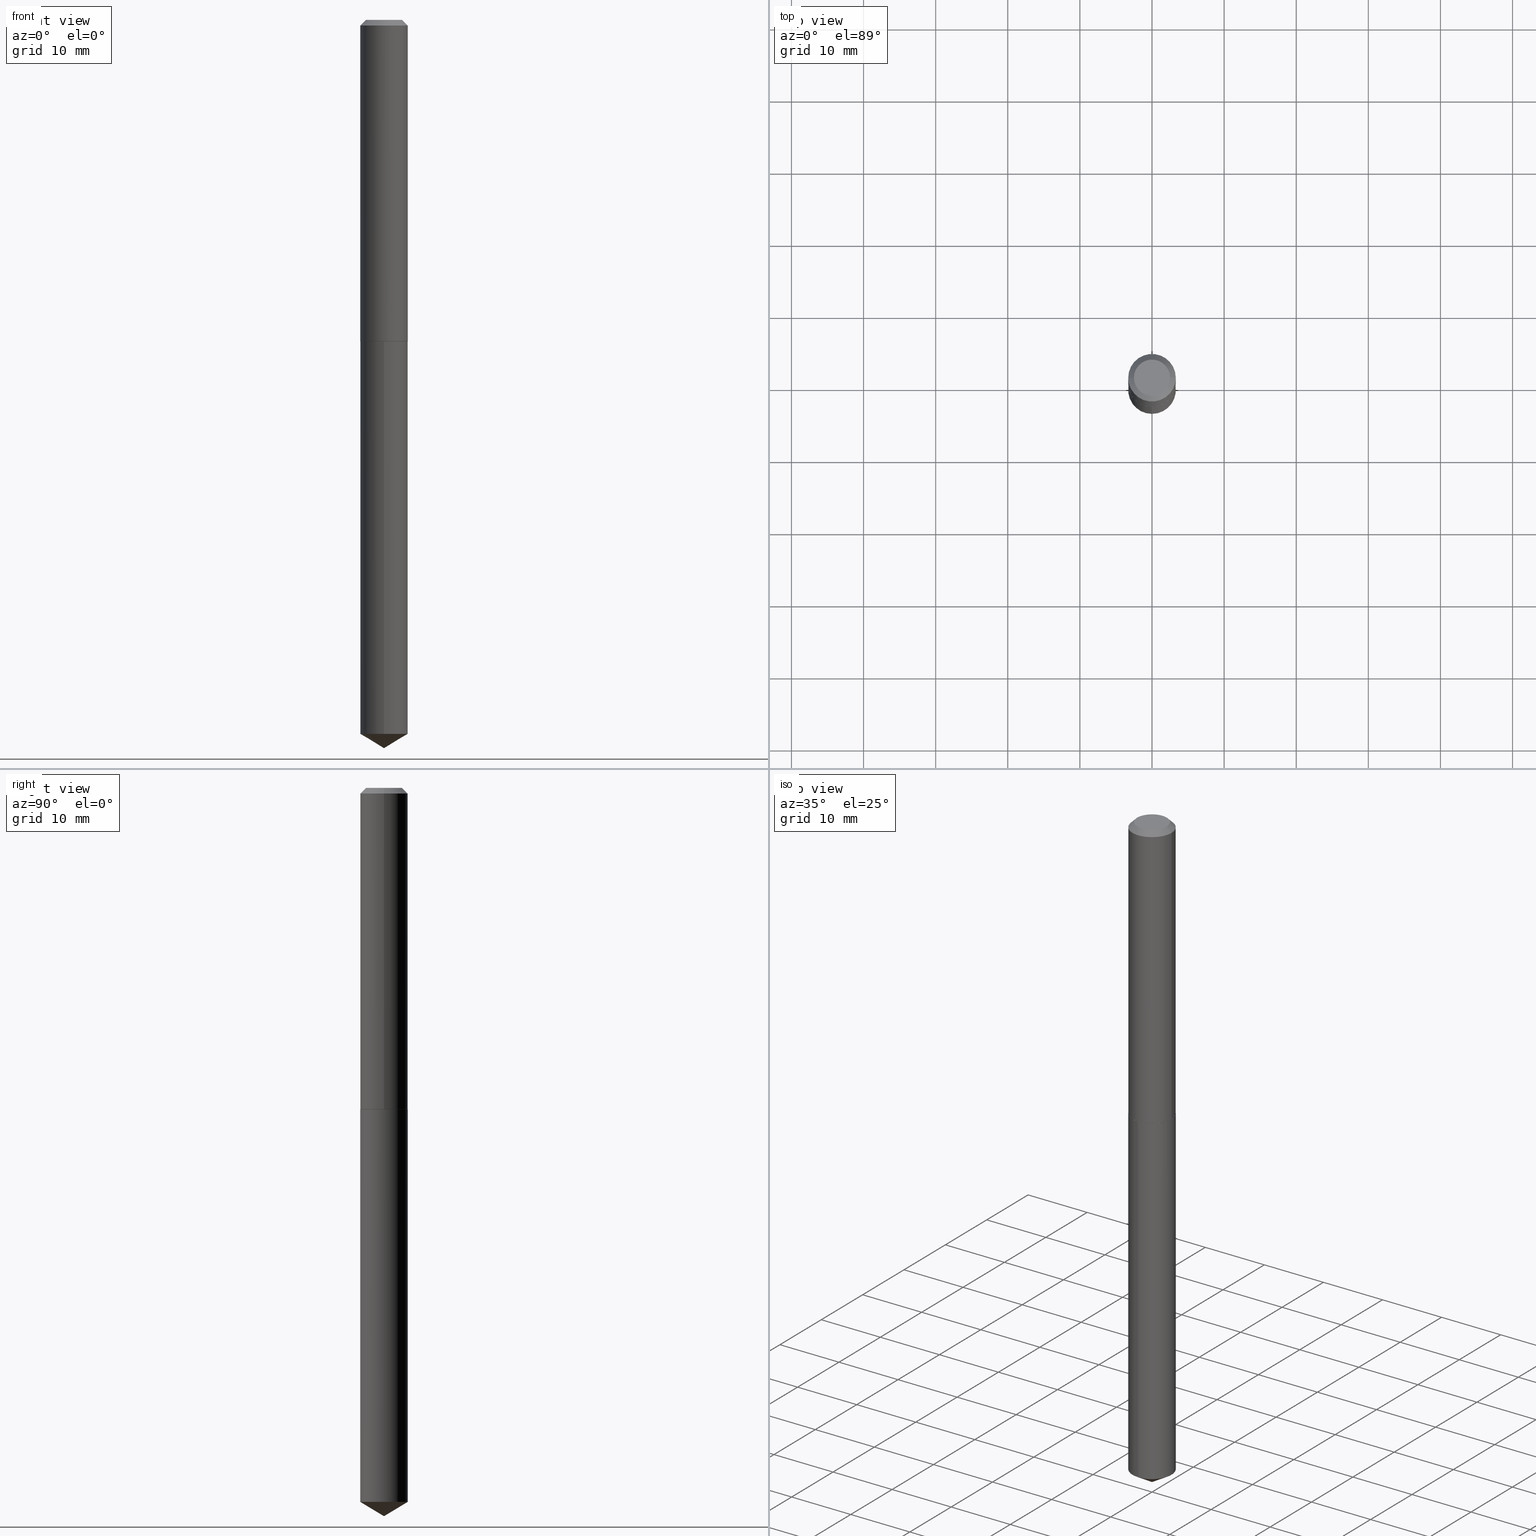
[diagram: canonical four-view strip — front | top / right | iso, engineering-drawing reading convention]
A machine part, canonical four-view strip (front | top / right | iso — engineering-drawing reading convention). The complete STEP part file that produces these views, byte-faithful:
ISO-10303-21;
HEADER;
FILE_DESCRIPTION (( 'STEP AP203' ),
    '1' );
FILE_NAME ('68338.STEP',
    '2024-04-23T13:09:23',
    ( '' ),
    ( '' ),
    'SwSTEP 2.0',
    'SolidWorks 2023',
    '' );
FILE_SCHEMA (( 'CONFIG_CONTROL_DESIGN' ));
ENDSEC;

DATA;
#1 = PERSON_AND_ORGANIZATION ( #253, #172 ) ;
#2 = CARTESIAN_POINT ( 'NONE',  ( 9.724418431170439560E-29, -1.388315940218349034E-14, -3.976399999999999491 ) ) ;
#3 = ORIENTED_EDGE ( 'NONE', *, *, #373, .F. ) ;
#4 = VECTOR ( 'NONE', #153, 39.37007874015748143 ) ;
#5 = CIRCLE ( 'NONE', #250, 0.1294000000000004036 ) ;
#6 = LINE ( 'NONE', #366, #231 ) ;
#7 = DIRECTION ( 'NONE',  ( 2.438088387897960049E-29, -3.491481338843145188E-15, -1.000000000000000000 ) ) ;
#8 = DIRECTION ( 'NONE',  ( -2.445533253991157994E-29, 3.491389045916781697E-15, 1.000000000000000000 ) ) ;
#9 = DIRECTION ( 'NONE',  ( -2.445468806185136877E-29, 3.491481338843145188E-15, 1.000000000000000000 ) ) ;
#10 = CC_DESIGN_APPROVAL ( #21, ( #89 ) ) ;
#11 = CARTESIAN_POINT ( 'NONE',  ( 4.292775942377387152E-29, -6.128946342205256121E-15, -1.755399999999999627 ) ) ;
#12 = EDGE_CURVE ( 'NONE', #314, #322, #316, .T. ) ;
#13 = DIRECTION ( 'NONE',  ( -6.982962677686266711E-15, -1.000000000000000000, 4.206078512185163024E-15 ) ) ;
#14 = DIRECTION ( 'NONE',  ( -0.7071067811865453523, 2.468850131082234184E-15, -0.7071067811865496822 ) ) ;
#15 = ORIENTED_EDGE ( 'NONE', *, *, #123, .T. ) ;
#16 = EDGE_CURVE ( 'NONE', #83, #136, #263, .T. ) ;
#17 = ORIENTED_EDGE ( 'NONE', *, *, #116, .F. ) ;
#18 = CARTESIAN_POINT ( 'NONE',  ( -0.1299000000000000155, 7.979780599925969900E-16, -0.03125000000000022204 ) ) ;
#19 = DATE_AND_TIME ( #204, #165 ) ;
#20 = ORIENTED_EDGE ( 'NONE', *, *, #284, .F. ) ;
#21 = APPROVAL ( #389, 'UNSPECIFIED' ) ;
#22 = DATE_TIME_ROLE ( 'creation_date' ) ;
#23 = DIRECTION ( 'NONE',  ( -6.982962677686266711E-15, -1.000000000000000000, 4.206078512185163024E-15 ) ) ;
#24 = CYLINDRICAL_SURFACE ( 'NONE', #267, 0.1299000000000000987 ) ;
#25 = VECTOR ( 'NONE', #14, 39.37007874015748143 ) ;
#26 = PERSON_AND_ORGANIZATION_ROLE ( 'classification_officer' ) ;
#27 = CARTESIAN_POINT ( 'NONE',  ( -0.09864999999999998770, 7.434236640731735244E-16, 4.776122516624595065E-19 ) ) ;
#28 = APPROVAL_ROLE ( '' ) ;
#29 = PRODUCT_RELATED_PRODUCT_CATEGORY ( 'detail', '', ( #282 ) ) ;
#30 = EDGE_LOOP ( 'NONE', ( #327, #299 ) ) ;
#31 = PLANE ( 'NONE',  #46 ) ;
#32 = CARTESIAN_POINT ( 'NONE',  ( 9.724192103365253366E-29, -1.388348351648229478E-14, -3.976399999999999491 ) ) ;
#33 = APPLICATION_CONTEXT ( 'configuration controlled 3d designs of mechanical parts and assemblies' ) ;
#34 = CARTESIAN_POINT ( 'NONE',  ( 4.293998676780479954E-29, -6.130692082874677624E-15, -1.755899999999999350 ) ) ;
#35 = CARTESIAN_POINT ( 'NONE',  ( 9.229950137524659006E-16, 0.1298999999999938815, -1.755900000000000016 ) ) ;
#36 = DIRECTION ( 'NONE',  ( -5.985567269335942857E-15, -0.8571673007021103352, 0.5150380749100574862 ) ) ;
#37 = CONICAL_SURFACE ( 'NONE', #206, 65.52281426576837475, 1.029744258676654090 ) ;
#38 = FACE_OUTER_BOUND ( 'NONE', #45, .T. ) ;
#39 = EDGE_LOOP ( 'NONE', ( #44, #229, #127, #3 ) ) ;
#40 = DIRECTION ( 'NONE',  ( 1.000000000000000000, -6.982962677686265922E-15, 4.876150846592043624E-29 ) ) ;
#41 = CC_DESIGN_PERSON_AND_ORGANIZATION_ASSIGNMENT ( #326, #85, ( #282 ) ) ;
#42 = DIRECTION ( 'NONE',  ( 1.000000000000000000, -6.982962677686265133E-15, 0.000000000000000000 ) ) ;
#43 = DIRECTION ( 'NONE',  ( -2.445468806185136597E-29, 3.491481338843145583E-15, 1.000000000000000000 ) ) ;
#44 = ORIENTED_EDGE ( 'NONE', *, *, #328, .F. ) ;
#45 = EDGE_LOOP ( 'NONE', ( #260, #140, #255, #157 ) ) ;
#46 = AXIS2_PLACEMENT_3D ( 'NONE', #243, #7, #118 ) ;
#47 = PRODUCT_DEFINITION_FORMATION_WITH_SPECIFIED_SOURCE ( 'ANY', '', #282, .NOT_KNOWN. ) ;
#48 = CARTESIAN_POINT ( 'NONE',  ( 0.000000000000000000, 0.000000000000000000, 0.000000000000000000 ) ) ;
#49 = ORIENTED_EDGE ( 'NONE', *, *, #60, .F. ) ;
#50 = DATE_AND_TIME ( #199, #211 ) ;
#51 = VERTEX_POINT ( 'NONE', #353 ) ;
#52 = COORDINATED_UNIVERSAL_TIME_OFFSET ( 5, 0, .BEHIND. ) ;
#53 = EDGE_LOOP ( 'NONE', ( #220, #15 ) ) ;
#54 = CC_DESIGN_PERSON_AND_ORGANIZATION_ASSIGNMENT ( #228, #360, ( #47 ) ) ;
#55 = VECTOR ( 'NONE', #280, 39.37007874015748854 ) ;
#56 = PERSON_AND_ORGANIZATION ( #253, #172 ) ;
#57 = DIRECTION ( 'NONE',  ( 0.7071067811865453523, -7.319954787623248157E-15, -0.7071067811865496822 ) ) ;
#58 = DIRECTION ( 'NONE',  ( -2.445533253991157994E-29, 3.491389045916781697E-15, 1.000000000000000000 ) ) ;
#59 = DIRECTION ( 'NONE',  ( -1.000000000000000000, 6.982962677686265133E-15, 0.000000000000000000 ) ) ;
#60 = EDGE_CURVE ( 'NONE', #238, #388, #107, .T. ) ;
#61 = AXIS2_PLACEMENT_3D ( 'NONE', #297, #112, #234 ) ;
#62 = DIRECTION ( 'NONE',  ( 1.000000000000000000, -6.982962677686264344E-15, 0.000000000000000000 ) ) ;
#63 = DIRECTION ( 'NONE',  ( 1.000000000000000000, -6.982962677686265922E-15, 4.876150846592043624E-29 ) ) ;
#64 = EDGE_CURVE ( 'NONE', #115, #72, #152, .T. ) ;
#65 = DIRECTION ( 'NONE',  ( 1.000000000000000000, -6.982962677686265922E-15, 4.876176775795935232E-29 ) ) ;
#66 = CARTESIAN_POINT ( 'NONE',  ( 0.09864999999999998770, -8.385378046147662997E-16, 4.776122516728078170E-19 ) ) ;
#67 = CIRCLE ( 'NONE', #362, 0.09864999999999998770 ) ;
#68 = VECTOR ( 'NONE', #69, 39.37007874015748854 ) ;
#69 = DIRECTION ( 'NONE',  ( -0.7071067811862817853, 7.493145998869393328E-15, 0.7071067811868130271 ) ) ;
#70 = MANIFOLD_SOLID_BREP ( 'Body-Move/Copy2[2]', #230 ) ;
#71 = ADVANCED_FACE ( 'NONE', ( #236 ), #24, .T. ) ;
#72 = VERTEX_POINT ( 'NONE', #108 ) ;
#73 = CARTESIAN_POINT ( 'NONE',  ( 0.1299000000000002097, -7.036033194036703296E-15, -1.755399999999999627 ) ) ;
#74 = AXIS2_PLACEMENT_3D ( 'NONE', #124, #330, #94 ) ;
#75 = CIRCLE ( 'NONE', #121, 0.1299000000000002097 ) ;
#76 = EDGE_CURVE ( 'NONE', #72, #115, #138, .T. ) ;
#77 = PERSON_AND_ORGANIZATION ( #253, #172 ) ;
#78 = ORIENTED_EDGE ( 'NONE', *, *, #270, .F. ) ;
#79 = DATE_TIME_ROLE ( 'classification_date' ) ;
#80 = VERTEX_POINT ( 'NONE', #27 ) ;
#81 = AXIS2_PLACEMENT_3D ( 'NONE', #365, #90, #304 ) ;
#82 = CARTESIAN_POINT ( 'NONE',  ( 0.000000000000000000, 0.000000000000000000, 0.000000000000000000 ) ) ;
#83 = VERTEX_POINT ( 'NONE', #2 ) ;
#84 = ADVANCED_FACE ( 'NONE', ( #114 ), #332, .T. ) ;
#85 = PERSON_AND_ORGANIZATION_ROLE ( 'design_owner' ) ;
#86 = CARTESIAN_POINT ( 'NONE',  ( 4.292775942377387152E-29, -6.128946342205256121E-15, -1.755399999999999627 ) ) ;
#87 = AXIS2_PLACEMENT_3D ( 'NONE', #337, #43, #42 ) ;
#88 = ORIENTED_EDGE ( 'NONE', *, *, #289, .F. ) ;
#89 = PRODUCT_DEFINITION ( 'UNKNOWN', '', #47, #335 ) ;
#90 = DIRECTION ( 'NONE',  ( -2.445468806185136597E-29, 3.491481338843145583E-15, 1.000000000000000000 ) ) ;
#91 = CARTESIAN_POINT ( 'NONE',  ( 9.229950137524655062E-16, 0.1298999999999864152, -3.898348205588320070 ) ) ;
#92 = CIRCLE ( 'NONE', #139, 0.1298999999999999877 ) ;
#93 = DIRECTION ( 'NONE',  ( -2.445533253991157994E-29, 3.491389045916781697E-15, 1.000000000000000000 ) ) ;
#94 = DIRECTION ( 'NONE',  ( 1.000000000000000000, -6.982962677686264344E-15, 0.000000000000000000 ) ) ;
#95 = CC_DESIGN_DATE_AND_TIME_ASSIGNMENT ( #173, #79, ( #178 ) ) ;
#96 = CARTESIAN_POINT ( 'NONE',  ( 4.293998676780479954E-29, -6.130692082874677624E-15, -1.755899999999999350 ) ) ;
#97 = DIRECTION ( 'NONE',  ( -2.445533253991157994E-29, 3.491389045916781697E-15, 1.000000000000000000 ) ) ;
#98 = APPROVAL_PERSON_ORGANIZATION ( #356, #341, #28 ) ;
#99 =( LENGTH_UNIT ( ) NAMED_UNIT ( * ) SI_UNIT ( $, .METRE. ) );
#100 = ORIENTED_EDGE ( 'NONE', *, *, #241, .F. ) ;
#101 = LINE ( 'NONE', #18, #25 ) ;
#102 = FACE_OUTER_BOUND ( 'NONE', #104, .T. ) ;
#103 = CLOSED_SHELL ( 'NONE', ( #387, #180, #210, #323, #261 ) ) ;
#104 = EDGE_LOOP ( 'NONE', ( #218, #137, #188, #224 ) ) ;
#105 = AXIS2_PLACEMENT_3D ( 'NONE', #182, #181, #240 ) ;
#106 = APPROVAL_DATE_TIME ( #19, #21 ) ;
#107 = LINE ( 'NONE', #198, #131 ) ;
#108 = CARTESIAN_POINT ( 'NONE',  ( -9.070868518314029991E-16, -0.1299000000000061217, -1.755899999999998906 ) ) ;
#109 = AXIS2_PLACEMENT_3D ( 'NONE', #167, #292, #23 ) ;
#110 = APPROVAL_ROLE ( '' ) ;
#111 = ADVANCED_FACE ( 'NONE', ( #333 ), #317, .T. ) ;
#112 = DIRECTION ( 'NONE',  ( -2.445533253991157994E-29, 3.491389045916781697E-15, 1.000000000000000000 ) ) ;
#113 = CALENDAR_DATE ( 2024, 23, 4 ) ;
#114 = FACE_OUTER_BOUND ( 'NONE', #39, .T. ) ;
#115 = VERTEX_POINT ( 'NONE', #35 ) ;
#116 = EDGE_CURVE ( 'NONE', #271, #238, #346, .T. ) ;
#117 = AXIS2_PLACEMENT_3D ( 'NONE', #34, #148, #302 ) ;
#118 = DIRECTION ( 'NONE',  ( -1.000000000000000000, 6.982962677686265922E-15, -4.876176775795935793E-29 ) ) ;
#119 = FACE_OUTER_BOUND ( 'NONE', #53, .T. ) ;
#120 = FACE_OUTER_BOUND ( 'NONE', #285, .T. ) ;
#121 = AXIS2_PLACEMENT_3D ( 'NONE', #156, #381, #159 ) ;
#122 = CYLINDRICAL_SURFACE ( 'NONE', #363, 0.1299000000000000987 ) ;
#123 = EDGE_CURVE ( 'NONE', #314, #80, #67, .T. ) ;
#124 = CARTESIAN_POINT ( 'NONE',  ( 4.292775942377387152E-29, -6.128946342205256121E-15, -1.755399999999999627 ) ) ;
#125 = CARTESIAN_POINT ( 'NONE',  ( -1.167985862904637027E-47, 1.667574263899819231E-33, 4.776122516674675984E-19 ) ) ;
#126 = PLANE ( 'NONE',  #244 ) ;
#127 = ORIENTED_EDGE ( 'NONE', *, *, #284, .T. ) ;
#128 = ORIENTED_EDGE ( 'NONE', *, *, #16, .T. ) ;
#129 = CARTESIAN_POINT ( 'NONE',  ( 7.642090019328606165E-31, -1.091087918388490760E-16, -0.03125000000000022204 ) ) ;
#130 = DIRECTION ( 'NONE',  ( -2.445468806185136597E-29, 3.491481338843145583E-15, 1.000000000000000000 ) ) ;
#131 = VECTOR ( 'NONE', #293, 39.37007874015748143 ) ;
#132 = ORIENTED_EDGE ( 'NONE', *, *, #16, .F. ) ;
#133 = DATE_AND_TIME ( #235, #216 ) ;
#134 = CARTESIAN_POINT ( 'NONE',  ( 0.1299000000000000155, -1.000287481749371031E-15, -0.03125000000000022204 ) ) ;
#135 = COORDINATED_UNIVERSAL_TIME_OFFSET ( 5, 0, .BEHIND. ) ;
#136 = VERTEX_POINT ( 'NONE', #91 ) ;
#137 = ORIENTED_EDGE ( 'NONE', *, *, #155, .T. ) ;
#138 = CIRCLE ( 'NONE', #61, 0.1298999999999999877 ) ;
#139 = AXIS2_PLACEMENT_3D ( 'NONE', #273, #93, #336 ) ;
#140 = ORIENTED_EDGE ( 'NONE', *, *, #289, .T. ) ;
#141 = SHAPE_DEFINITION_REPRESENTATION ( #378, #251 ) ;
#142 = EDGE_LOOP ( 'NONE', ( #190, #272, #312, #343 ) ) ;
#143 = EDGE_CURVE ( 'NONE', #83, #203, #307, .T. ) ;
#144 = CARTESIAN_POINT ( 'NONE',  ( -8.655653150403758545E-28, 1.235729401909340995E-13, 35.39367874015748328 ) ) ;
#145 = AXIS2_PLACEMENT_3D ( 'NONE', #279, #58, #175 ) ;
#146 = CC_DESIGN_SECURITY_CLASSIFICATION ( #178, ( #47 ) ) ;
#147 = DIRECTION ( 'NONE',  ( -2.445468806185136597E-29, 3.491481338843145583E-15, 1.000000000000000000 ) ) ;
#148 = DIRECTION ( 'NONE',  ( 2.445533253991157713E-29, -3.491389045916781697E-15, -1.000000000000000000 ) ) ;
#149 = APPROVAL ( #295, 'UNSPECIFIED' ) ;
#150 = UNCERTAINTY_MEASURE_WITH_UNIT (LENGTH_MEASURE( 1.000000000000000082E-05 ), #219, 'distance_accuracy_value', 'NONE');
#151 = DIRECTION ( 'NONE',  ( 2.445468806185136597E-29, -3.491481338843145583E-15, -1.000000000000000000 ) ) ;
#152 = CIRCLE ( 'NONE', #109, 0.1298999999999999877 ) ;
#153 = DIRECTION ( 'NONE',  ( -2.445533253991157994E-29, 3.491389045916781697E-15, 1.000000000000000000 ) ) ;
#154 = CARTESIAN_POINT ( 'NONE',  ( 0.1299000000000000155, -1.016195643670295093E-15, -0.03125000000000022204 ) ) ;
#155 = EDGE_CURVE ( 'NONE', #136, #115, #276, .T. ) ;
#156 = CARTESIAN_POINT ( 'NONE',  ( 4.292775942377387152E-29, -6.128946342205256121E-15, -1.755399999999999627 ) ) ;
#157 = ORIENTED_EDGE ( 'NONE', *, *, #64, .F. ) ;
#158 = VECTOR ( 'NONE', #8, 39.37007874015748143 ) ;
#159 = DIRECTION ( 'NONE',  ( 1.000000000000000000, -6.982962677686264344E-15, 0.000000000000000000 ) ) ;
#160 = LINE ( 'NONE', #348, #55 ) ;
#161 = ADVANCED_FACE ( 'NONE', ( #119 ), #31, .F. ) ;
#162 = DIRECTION ( 'NONE',  ( 1.000000000000000000, -6.982962677686265922E-15, 4.876176775795935793E-29 ) ) ;
#163 = CONICAL_SURFACE ( 'NONE', #384, 0.1299000000000000155, 0.7853981633974452814 ) ;
#164 = ORIENTED_EDGE ( 'NONE', *, *, #306, .F. ) ;
#165 = LOCAL_TIME ( 9, 9, 23.00000000000000000, #266 ) ;
#166 = CALENDAR_DATE ( 2024, 23, 4 ) ;
#167 = CARTESIAN_POINT ( 'NONE',  ( 4.293998676780479954E-29, -6.130692082874677624E-15, -1.755899999999999350 ) ) ;
#168 = CC_DESIGN_PERSON_AND_ORGANIZATION_ASSIGNMENT ( #56, #26, ( #178 ) ) ;
#169 = EDGE_LOOP ( 'NONE', ( #359, #232, #269, #164 ) ) ;
#170 = SECURITY_CLASSIFICATION_LEVEL ( 'unclassified' ) ;
#171 = ORIENTED_EDGE ( 'NONE', *, *, #254, .F. ) ;
#172 = ORGANIZATION ( 'UNSPECIFIED', 'UNSPECIFIED', '' ) ;
#173 = DATE_AND_TIME ( #113, #223 ) ;
#174 = EDGE_LOOP ( 'NONE', ( #49, #349, #226, #171 ) ) ;
#175 = DIRECTION ( 'NONE',  ( -6.982962677686267499E-15, -1.000000000000000000, 3.468864327941597370E-15 ) ) ;
#176 = PLANE ( 'NONE',  #117 ) ;
#177 = AXIS2_PLACEMENT_3D ( 'NONE', #242, #151, #59 ) ;
#178 = SECURITY_CLASSIFICATION ( '', '', #170 ) ;
#179 = CARTESIAN_POINT ( 'NONE',  ( 0.000000000000000000, 0.000000000000000000, 0.000000000000000000 ) ) ;
#180 = ADVANCED_FACE ( 'NONE', ( #246 ), #274, .T. ) ;
#181 = DIRECTION ( 'NONE',  ( -2.445468806185136597E-29, 3.491481338843145583E-15, 1.000000000000000000 ) ) ;
#182 = CARTESIAN_POINT ( 'NONE',  ( 4.293998676780481075E-29, -6.130692082874678413E-15, -1.755899999999999794 ) ) ;
#183 = AXIS2_PLACEMENT_3D ( 'NONE', #11, #147, #329 ) ;
#184 = CIRCLE ( 'NONE', #105, 0.1294000000000004036 ) ;
#185 = ADVANCED_FACE ( 'NONE', ( #300 ), #354, .T. ) ;
#186 = CARTESIAN_POINT ( 'NONE',  ( 0.1294000000000004036, -7.034287453367284159E-15, -1.755899999999999794 ) ) ;
#187 = DIRECTION ( 'NONE',  ( -6.982962677686266711E-15, -1.000000000000000000, 4.206078512185163024E-15 ) ) ;
#188 = ORIENTED_EDGE ( 'NONE', *, *, #76, .F. ) ;
#189 = DIRECTION ( 'NONE',  ( -2.445533253991157994E-29, 3.491389045916781697E-15, 1.000000000000000000 ) ) ;
#190 = ORIENTED_EDGE ( 'NONE', *, *, #12, .F. ) ;
#191 = EDGE_CURVE ( 'NONE', #203, #72, #278, .T. ) ;
#192 =( NAMED_UNIT ( * ) PLANE_ANGLE_UNIT ( ) SI_UNIT ( $, .RADIAN. ) );
#193 = ORIENTED_EDGE ( 'NONE', *, *, #301, .F. ) ;
#194 = ORIENTED_EDGE ( 'NONE', *, *, #328, .T. ) ;
#195 = MECHANICAL_CONTEXT ( 'NONE', #33, 'mechanical' ) ;
#196 = CC_DESIGN_PERSON_AND_ORGANIZATION_ASSIGNMENT ( #291, #324, ( #89 ) ) ;
#197 = CIRCLE ( 'NONE', #81, 0.1299000000000000155 ) ;
#198 = CARTESIAN_POINT ( 'NONE',  ( -0.1299000000000000987, 9.229950137523708429E-16, -6.389696682241127415E-30 ) ) ;
#199 = CALENDAR_DATE ( 2024, 23, 4 ) ;
#200 = EDGE_LOOP ( 'NONE', ( #78, #100 ) ) ;
#201 = MANIFOLD_SOLID_BREP ( 'Body-Move/Copy2[1]', #103 ) ;
#202 = APPROVAL_ROLE ( '' ) ;
#203 = VERTEX_POINT ( 'NONE', #372 ) ;
#204 = CALENDAR_DATE ( 2024, 23, 4 ) ;
#205 = DIRECTION ( 'NONE',  ( -2.445468806185136597E-29, 3.491481338843145583E-15, 1.000000000000000000 ) ) ;
#206 = AXIS2_PLACEMENT_3D ( 'NONE', #144, #245, #371 ) ;
#207 = CARTESIAN_POINT ( 'NONE',  ( -1.167985862904637027E-47, 1.667574263899819231E-33, 4.776122516674675984E-19 ) ) ;
#208 = FACE_OUTER_BOUND ( 'NONE', #30, .T. ) ;
#209 = FACE_OUTER_BOUND ( 'NONE', #383, .T. ) ;
#210 = ADVANCED_FACE ( 'NONE', ( #120 ), #37, .T. ) ;
#211 = LOCAL_TIME ( 9, 9, 23.00000000000000000, #385 ) ;
#212 = CARTESIAN_POINT ( 'NONE',  ( -0.1299000000000002097, -5.205951328452885081E-15, -1.755399999999999627 ) ) ;
#213 = CARTESIAN_POINT ( 'NONE',  ( 9.229950137524128497E-16, 0.1298999999999938537, -1.755900000000000016 ) ) ;
#214 = EDGE_CURVE ( 'NONE', #203, #136, #92, .T. ) ;
#215 = DIRECTION ( 'NONE',  ( 1.000000000000000000, -6.982962677686263555E-15, 0.000000000000000000 ) ) ;
#216 = LOCAL_TIME ( 9, 9, 23.00000000000000000, #52 ) ;
#217 = DIRECTION ( 'NONE',  ( -2.445533253991157994E-29, 3.491389045916781697E-15, 1.000000000000000000 ) ) ;
#218 = ORIENTED_EDGE ( 'NONE', *, *, #214, .T. ) ;
#219 =( CONVERSION_BASED_UNIT ( 'INCH', #252 ) LENGTH_UNIT ( ) NAMED_UNIT ( #380 ) );
#220 = ORIENTED_EDGE ( 'NONE', *, *, #334, .T. ) ;
#221 =( NAMED_UNIT ( * ) SI_UNIT ( $, .STERADIAN. ) SOLID_ANGLE_UNIT ( ) );
#222 = CARTESIAN_POINT ( 'NONE',  ( -0.1299000000000000155, -2.196032553269681176E-15, -0.03125000000000022204 ) ) ;
#223 = LOCAL_TIME ( 9, 9, 23.00000000000000000, #135 ) ;
#224 = ORIENTED_EDGE ( 'NONE', *, *, #191, .F. ) ;
#225 = PERSON_AND_ORGANIZATION ( #253, #172 ) ;
#226 = ORIENTED_EDGE ( 'NONE', *, *, #227, .T. ) ;
#227 = EDGE_CURVE ( 'NONE', #271, #322, #6, .T. ) ;
#228 = PERSON_AND_ORGANIZATION ( #253, #172 ) ;
#229 = ORIENTED_EDGE ( 'NONE', *, *, #241, .T. ) ;
#230 = CLOSED_SHELL ( 'NONE', ( #382, #237, #111, #310, #84, #71, #185, #161 ) ) ;
#231 = VECTOR ( 'NONE', #9, 39.37007874015748143 ) ;
#232 = ORIENTED_EDGE ( 'NONE', *, *, #12, .T. ) ;
#233 = APPLICATION_PROTOCOL_DEFINITION ( 'international standard', 'config_control_design', 1994, #33 ) ;
#234 = DIRECTION ( 'NONE',  ( -6.982962677686266711E-15, -1.000000000000000000, 4.206078512185163024E-15 ) ) ;
#235 = CALENDAR_DATE ( 2024, 23, 4 ) ;
#236 = FACE_OUTER_BOUND ( 'NONE', #174, .T. ) ;
#237 = ADVANCED_FACE ( 'NONE', ( #209 ), #122, .T. ) ;
#238 = VERTEX_POINT ( 'NONE', #212 ) ;
#239 = AXIS2_PLACEMENT_3D ( 'NONE', #313, #217, #13 ) ;
#240 = DIRECTION ( 'NONE',  ( 1.000000000000000000, -6.982962677686263555E-15, 0.000000000000000000 ) ) ;
#241 = EDGE_CURVE ( 'NONE', #51, #325, #184, .T. ) ;
#242 = CARTESIAN_POINT ( 'NONE',  ( 7.642090019328606165E-31, -1.091087918388490760E-16, -0.03125000000000022204 ) ) ;
#243 = CARTESIAN_POINT ( 'NONE',  ( -5.839929314523185133E-48, 8.337871319499096154E-34, 2.388061258337337992E-19 ) ) ;
#244 = AXIS2_PLACEMENT_3D ( 'NONE', #256, #344, #162 ) ;
#245 = DIRECTION ( 'NONE',  ( -2.445533253991157994E-29, 3.491389045916781697E-15, 1.000000000000000000 ) ) ;
#246 = FACE_OUTER_BOUND ( 'NONE', #379, .T. ) ;
#247 = APPLICATION_CONTEXT ( 'configuration controlled 3d designs of mechanical parts and assemblies' ) ;
#248 = DIRECTION ( 'NONE',  ( 2.445468806185136597E-29, -3.491481338843145583E-15, -1.000000000000000000 ) ) ;
#249 = VECTOR ( 'NONE', #57, 39.37007874015748143 ) ;
#250 = AXIS2_PLACEMENT_3D ( 'NONE', #277, #311, #215 ) ;
#251 = ADVANCED_BREP_SHAPE_REPRESENTATION ( '68338', ( #201, #70, #347 ), #370 ) ;
#252 = LENGTH_MEASURE_WITH_UNIT ( LENGTH_MEASURE( 0.02539999999999999897 ), #99 );
#253 = PERSON ( 'UNSPECIFIED', 'UNSPECIFIED', 'UNSPECIFIED', ('UNSPECIFIED'), ('UNSPECIFIED'), ('UNSPECIFIED') ) ;
#254 = EDGE_CURVE ( 'NONE', #388, #322, #197, .T. ) ;
#255 = ORIENTED_EDGE ( 'NONE', *, *, #191, .T. ) ;
#256 = CARTESIAN_POINT ( 'NONE',  ( 1.705417708252739860E-29, -9.837687362685398091E-15, -1.755899999999999794 ) ) ;
#257 = ORIENTED_EDGE ( 'NONE', *, *, #270, .T. ) ;
#258 = DIRECTION ( 'NONE',  ( -1.000000000000000000, 6.982962677686265133E-15, 0.000000000000000000 ) ) ;
#259 = CIRCLE ( 'NONE', #87, 0.1299000000000000155 ) ;
#260 = ORIENTED_EDGE ( 'NONE', *, *, #155, .F. ) ;
#261 = ADVANCED_FACE ( 'NONE', ( #208 ), #176, .F. ) ;
#262 = DIRECTION ( 'NONE',  ( 1.000000000000000000, 0.000000000000000000, 0.000000000000000000 ) ) ;
#263 = LINE ( 'NONE', #320, #375 ) ;
#264 = APPROVAL_STATUS ( 'not_yet_approved' ) ;
#265 = DIRECTION ( 'NONE',  ( 1.000000000000000000, -6.982962677686265922E-15, 4.876176775795935232E-29 ) ) ;
#266 = COORDINATED_UNIVERSAL_TIME_OFFSET ( 5, 0, .BEHIND. ) ;
#267 = AXIS2_PLACEMENT_3D ( 'NONE', #82, #390, #265 ) ;
#268 = CIRCLE ( 'NONE', #239, 0.1298999999999999877 ) ;
#269 = ORIENTED_EDGE ( 'NONE', *, *, #301, .T. ) ;
#270 = EDGE_CURVE ( 'NONE', #325, #51, #5, .T. ) ;
#271 = VERTEX_POINT ( 'NONE', #73 ) ;
#272 = ORIENTED_EDGE ( 'NONE', *, *, #334, .F. ) ;
#273 = CARTESIAN_POINT ( 'NONE',  ( 9.533427008500400786E-29, -1.361081227930980387E-14, -3.898348205588319626 ) ) ;
#274 = CONICAL_SURFACE ( 'NONE', #145, 65.52281426576837475, 1.029744258676654090 ) ;
#275 = CC_DESIGN_APPROVAL ( #149, ( #47 ) ) ;
#276 = LINE ( 'NONE', #213, #4 ) ;
#277 = CARTESIAN_POINT ( 'NONE',  ( 4.293998676780481075E-29, -6.130692082874678413E-15, -1.755899999999999794 ) ) ;
#278 = LINE ( 'NONE', #367, #158 ) ;
#279 = CARTESIAN_POINT ( 'NONE',  ( -8.655653150403758545E-28, 1.235729401909340995E-13, 35.39367874015748328 ) ) ;
#280 = DIRECTION ( 'NONE',  ( 0.7071067811862817853, -2.468850131079474354E-15, 0.7071067811868130271 ) ) ;
#281 = FACE_OUTER_BOUND ( 'NONE', #169, .T. ) ;
#282 = PRODUCT ( '68338', '68338', '', ( #195 ) ) ;
#283 = ORIENTED_EDGE ( 'NONE', *, *, #143, .F. ) ;
#284 = EDGE_CURVE ( 'NONE', #325, #271, #160, .T. ) ;
#285 = EDGE_LOOP ( 'NONE', ( #132, #290, #88 ) ) ;
#286 = CYLINDRICAL_SURFACE ( 'NONE', #376, 0.1298999999999999877 ) ;
#287 = ORIENTED_EDGE ( 'NONE', *, *, #227, .F. ) ;
#288 = CYLINDRICAL_SURFACE ( 'NONE', #296, 0.1298999999999999877 ) ;
#289 = EDGE_CURVE ( 'NONE', #136, #203, #268, .T. ) ;
#290 = ORIENTED_EDGE ( 'NONE', *, *, #143, .T. ) ;
#291 = PERSON_AND_ORGANIZATION ( #253, #172 ) ;
#292 = DIRECTION ( 'NONE',  ( -2.445533253991157994E-29, 3.491389045916781697E-15, 1.000000000000000000 ) ) ;
#293 = DIRECTION ( 'NONE',  ( -2.445468806185136877E-29, 3.491481338843145188E-15, 1.000000000000000000 ) ) ;
#294 = CC_DESIGN_DATE_AND_TIME_ASSIGNMENT ( #319, #22, ( #89 ) ) ;
#295 = APPROVAL_STATUS ( 'not_yet_approved' ) ;
#296 = AXIS2_PLACEMENT_3D ( 'NONE', #96, #189, #345 ) ;
#297 = CARTESIAN_POINT ( 'NONE',  ( 4.293998676780479954E-29, -6.130692082874677624E-15, -1.755899999999999350 ) ) ;
#298 = APPROVAL_DATE_TIME ( #50, #341 ) ;
#299 = ORIENTED_EDGE ( 'NONE', *, *, #64, .T. ) ;
#300 = FACE_OUTER_BOUND ( 'NONE', #142, .T. ) ;
#301 = EDGE_CURVE ( 'NONE', #322, #388, #259, .T. ) ;
#302 = DIRECTION ( 'NONE',  ( 6.982962677686265922E-15, 1.000000000000000000, -3.491389045916781697E-15 ) ) ;
#303 = CIRCLE ( 'NONE', #308, 0.09864999999999998770 ) ;
#304 = DIRECTION ( 'NONE',  ( 1.000000000000000000, -6.982962677686265133E-15, 0.000000000000000000 ) ) ;
#305 = DIRECTION ( 'NONE',  ( -2.445468806185136597E-29, 3.491481338843145583E-15, 1.000000000000000000 ) ) ;
#306 = EDGE_CURVE ( 'NONE', #80, #388, #101, .T. ) ;
#307 = LINE ( 'NONE', #32, #338 ) ;
#308 = AXIS2_PLACEMENT_3D ( 'NONE', #125, #130, #40 ) ;
#309 = LINE ( 'NONE', #342, #68 ) ;
#310 = ADVANCED_FACE ( 'NONE', ( #377 ), #126, .F. ) ;
#311 = DIRECTION ( 'NONE',  ( -2.445468806185136597E-29, 3.491481338843145583E-15, 1.000000000000000000 ) ) ;
#312 = ORIENTED_EDGE ( 'NONE', *, *, #306, .T. ) ;
#313 = CARTESIAN_POINT ( 'NONE',  ( 9.533427008500400786E-29, -1.361081227930980387E-14, -3.898348205588319626 ) ) ;
#314 = VERTEX_POINT ( 'NONE', #66 ) ;
#315 = COORDINATED_UNIVERSAL_TIME_OFFSET ( 5, 0, .BEHIND. ) ;
#316 = LINE ( 'NONE', #134, #249 ) ;
#317 = CONICAL_SURFACE ( 'NONE', #183, 0.1299000000000002097, 0.7853981633970726906 ) ;
#318 = CC_DESIGN_APPROVAL ( #341, ( #178 ) ) ;
#319 = DATE_AND_TIME ( #166, #339 ) ;
#320 = CARTESIAN_POINT ( 'NONE',  ( 9.724420415798132760E-29, -1.388315940218349034E-14, -3.976399999999999491 ) ) ;
#321 = DIRECTION ( 'NONE',  ( 0.000000000000000000, 0.000000000000000000, 1.000000000000000000 ) ) ;
#322 = VERTEX_POINT ( 'NONE', #154 ) ;
#323 = ADVANCED_FACE ( 'NONE', ( #38 ), #288, .T. ) ;
#324 = PERSON_AND_ORGANIZATION_ROLE ( 'creator' ) ;
#325 = VERTEX_POINT ( 'NONE', #186 ) ;
#326 = PERSON_AND_ORGANIZATION ( #253, #172 ) ;
#327 = ORIENTED_EDGE ( 'NONE', *, *, #76, .T. ) ;
#328 = EDGE_CURVE ( 'NONE', #51, #238, #309, .T. ) ;
#329 = DIRECTION ( 'NONE',  ( 1.000000000000000000, -6.982962677686264344E-15, 0.000000000000000000 ) ) ;
#330 = DIRECTION ( 'NONE',  ( -2.445468806185136597E-29, 3.491481338843145583E-15, 1.000000000000000000 ) ) ;
#331 = DIRECTION ( 'NONE',  ( -2.445468806185136597E-29, 3.491481338843145583E-15, 1.000000000000000000 ) ) ;
#332 = CONICAL_SURFACE ( 'NONE', #368, 0.1299000000000002097, 0.7853981633970726906 ) ;
#333 = FACE_OUTER_BOUND ( 'NONE', #361, .T. ) ;
#334 = EDGE_CURVE ( 'NONE', #80, #314, #303, .T. ) ;
#335 = DESIGN_CONTEXT ( 'detailed design', #247, 'design' ) ;
#336 = DIRECTION ( 'NONE',  ( -6.982962677686266711E-15, -1.000000000000000000, 4.206078512185163024E-15 ) ) ;
#337 = CARTESIAN_POINT ( 'NONE',  ( 7.642090019328606165E-31, -1.091087918388490760E-16, -0.03125000000000022204 ) ) ;
#338 = VECTOR ( 'NONE', #36, 39.37007874015748143 ) ;
#339 = LOCAL_TIME ( 9, 9, 23.00000000000000000, #315 ) ;
#340 = APPROVAL_PERSON_ORGANIZATION ( #77, #21, #202 ) ;
#341 = APPROVAL ( #264, 'UNSPECIFIED' ) ;
#342 = CARTESIAN_POINT ( 'NONE',  ( -0.1299000000000002097, -5.205951328452885081E-15, -1.755399999999999627 ) ) ;
#343 = ORIENTED_EDGE ( 'NONE', *, *, #254, .T. ) ;
#344 = DIRECTION ( 'NONE',  ( -2.438088387897960049E-29, 3.491481338843145188E-15, 1.000000000000000000 ) ) ;
#345 = DIRECTION ( 'NONE',  ( -6.982962677686266711E-15, -1.000000000000000000, 4.206078512185163024E-15 ) ) ;
#346 = CIRCLE ( 'NONE', #74, 0.1299000000000002097 ) ;
#347 = AXIS2_PLACEMENT_3D ( 'NONE', #48, #321, #262 ) ;
#348 = CARTESIAN_POINT ( 'NONE',  ( 0.1299000000000002097, -7.036033194036703296E-15, -1.755399999999999627 ) ) ;
#349 = ORIENTED_EDGE ( 'NONE', *, *, #373, .T. ) ;
#350 = PERSON_AND_ORGANIZATION_ROLE ( 'creator' ) ;
#351 = ORIENTED_EDGE ( 'NONE', *, *, #116, .T. ) ;
#352 = APPROVAL_DATE_TIME ( #133, #149 ) ;
#353 = CARTESIAN_POINT ( 'NONE',  ( -0.1294000000000004036, -5.208600555626996282E-15, -1.755899999999999794 ) ) ;
#354 = CONICAL_SURFACE ( 'NONE', #177, 0.1299000000000000155, 0.7853981633974452814 ) ;
#355 = APPROVAL_PERSON_ORGANIZATION ( #225, #149, #110 ) ;
#356 = PERSON_AND_ORGANIZATION ( #253, #172 ) ;
#357 = ORIENTED_EDGE ( 'NONE', *, *, #214, .F. ) ;
#358 = APPLICATION_PROTOCOL_DEFINITION ( 'international standard', 'config_control_design', 1994, #247 ) ;
#359 = ORIENTED_EDGE ( 'NONE', *, *, #123, .F. ) ;
#360 = PERSON_AND_ORGANIZATION_ROLE ( 'design_supplier' ) ;
#361 = EDGE_LOOP ( 'NONE', ( #257, #194, #17, #20 ) ) ;
#362 = AXIS2_PLACEMENT_3D ( 'NONE', #207, #305, #63 ) ;
#363 = AXIS2_PLACEMENT_3D ( 'NONE', #179, #331, #65 ) ;
#364 = ORIENTED_EDGE ( 'NONE', *, *, #60, .T. ) ;
#365 = CARTESIAN_POINT ( 'NONE',  ( 7.642090019328606165E-31, -1.091087918388490760E-16, -0.03125000000000022204 ) ) ;
#366 = CARTESIAN_POINT ( 'NONE',  ( 0.1299000000000000987, -9.070868518314465837E-16, 6.334153631758925034E-30 ) ) ;
#367 = CARTESIAN_POINT ( 'NONE',  ( -9.070868518314029991E-16, -0.1299000000000061217, -1.755899999999998906 ) ) ;
#368 = AXIS2_PLACEMENT_3D ( 'NONE', #86, #205, #62 ) ;
#369 = CC_DESIGN_PERSON_AND_ORGANIZATION_ASSIGNMENT ( #1, #350, ( #47 ) ) ;
#370 =( GEOMETRIC_REPRESENTATION_CONTEXT ( 3 ) GLOBAL_UNCERTAINTY_ASSIGNED_CONTEXT ( ( #150 ) ) GLOBAL_UNIT_ASSIGNED_CONTEXT ( ( #219, #192, #221 ) ) REPRESENTATION_CONTEXT ( 'NONE', 'WORKASPACE' ) );
#371 = DIRECTION ( 'NONE',  ( -6.982962677686267499E-15, -1.000000000000000000, 3.468864327941597370E-15 ) ) ;
#372 = CARTESIAN_POINT ( 'NONE',  ( -9.070868518313507371E-16, -0.1299000000000136434, -3.898348205588319182 ) ) ;
#373 = EDGE_CURVE ( 'NONE', #238, #271, #75, .T. ) ;
#374 = CARTESIAN_POINT ( 'NONE',  ( 4.293998676780479954E-29, -6.130692082874677624E-15, -1.755899999999999350 ) ) ;
#375 = VECTOR ( 'NONE', #386, 39.37007874015748143 ) ;
#376 = AXIS2_PLACEMENT_3D ( 'NONE', #374, #97, #187 ) ;
#377 = FACE_OUTER_BOUND ( 'NONE', #200, .T. ) ;
#378 = PRODUCT_DEFINITION_SHAPE ( 'NONE', 'NONE',  #89 ) ;
#379 = EDGE_LOOP ( 'NONE', ( #283, #128, #357 ) ) ;
#380 = DIMENSIONAL_EXPONENTS ( 1.000000000000000000, 0.000000000000000000, 0.000000000000000000, 0.000000000000000000, 0.000000000000000000, 0.000000000000000000, 0.000000000000000000 ) ;
#381 = DIRECTION ( 'NONE',  ( -2.445468806185136597E-29, 3.491481338843145583E-15, 1.000000000000000000 ) ) ;
#382 = ADVANCED_FACE ( 'NONE', ( #281 ), #163, .T. ) ;
#383 = EDGE_LOOP ( 'NONE', ( #351, #364, #193, #287 ) ) ;
#384 = AXIS2_PLACEMENT_3D ( 'NONE', #129, #248, #258 ) ;
#385 = COORDINATED_UNIVERSAL_TIME_OFFSET ( 5, 0, .BEHIND. ) ;
#386 = DIRECTION ( 'NONE',  ( 6.090539988449778436E-15, 0.8571673007021139989, 0.5150380749100514910 ) ) ;
#387 = ADVANCED_FACE ( 'NONE', ( #102 ), #286, .T. ) ;
#388 = VERTEX_POINT ( 'NONE', #222 ) ;
#389 = APPROVAL_STATUS ( 'not_yet_approved' ) ;
#390 = DIRECTION ( 'NONE',  ( -2.445468806185136597E-29, 3.491481338843145583E-15, 1.000000000000000000 ) ) ;
ENDSEC;
END-ISO-10303-21;
